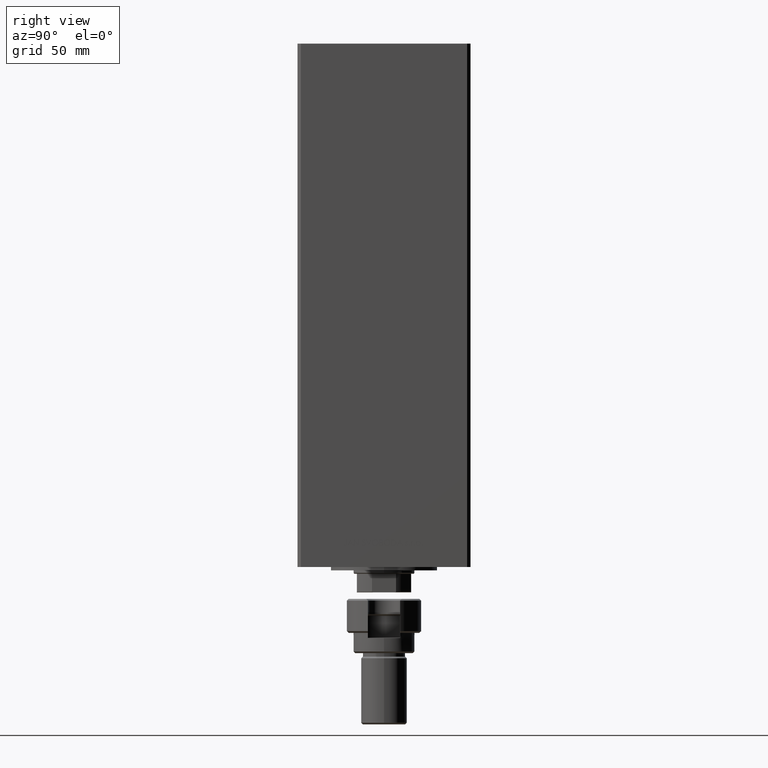
[diagram: clean part render]
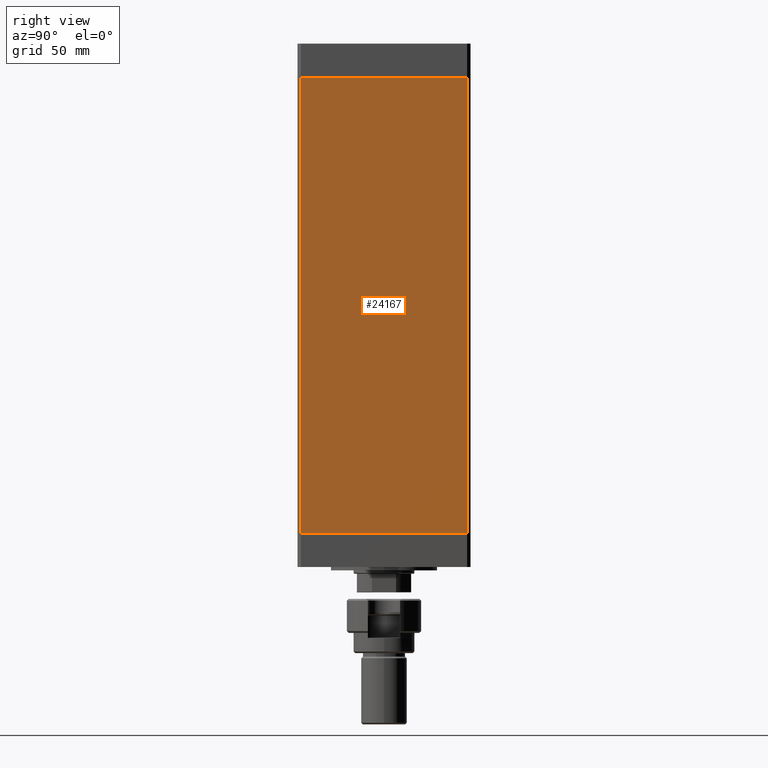
[diagram: same view with one face highlighted and labeled with its STEP entity id]
A machine part, right view. The second image highlights one B-rep face of the part: STEP entity #24167.
In plain terms, the highlighted planar face has unit normal (1, -0, 0).
Its self-contained STEP definition (entity closure, byte-faithful):
#844 = VERTEX_POINT ( 'NONE', #7793 ) ;
#4402 = EDGE_CURVE ( 'NONE', #25145, #20898, #7864, .T. ) ;
#5419 = EDGE_CURVE ( 'NONE', #844, #44251, #10490, .T. ) ;
#5439 = CARTESIAN_POINT ( 'NONE',  ( 60.00000000000001421, 49.00000000000000000, 268.5000000000000000 ) ) ;
#7748 = ORIENTED_EDGE ( 'NONE', *, *, #5419, .T. ) ;
#7793 = CARTESIAN_POINT ( 'NONE',  ( 59.99999999999998579, -49.00000000000000000, 268.5000000000000000 ) ) ;
#7864 = LINE ( 'NONE', #19289, #10674 ) ;
#10490 = LINE ( 'NONE', #46100, #19006 ) ;
#10674 = VECTOR ( 'NONE', #11161, 1000.000000000000000 ) ;
#10698 = VECTOR ( 'NONE', #14556, 1000.000000000000000 ) ;
#11161 = DIRECTION ( 'NONE',  ( -0.000000000000000000, -0.000000000000000000, -1.000000000000000000 ) ) ;
#14556 = DIRECTION ( 'NONE',  ( -2.832201593431521726E-16, -1.000000000000000000, 0.000000000000000000 ) ) ;
#18136 = AXIS2_PLACEMENT_3D ( 'NONE', #45392, #49472, #26064 ) ;
#18185 = PLANE ( 'NONE',  #18136 ) ;
#18916 = EDGE_CURVE ( 'NONE', #20898, #44251, #24273, .T. ) ;
#19006 = VECTOR ( 'NONE', #30072, 1000.000000000000000 ) ;
#19289 = CARTESIAN_POINT ( 'NONE',  ( 60.00000000000001421, 49.00000000000000000, 268.5000000000000000 ) ) ;
#20719 = DIRECTION ( 'NONE',  ( -2.832201593431521726E-16, -1.000000000000000000, 0.000000000000000000 ) ) ;
#20898 = VERTEX_POINT ( 'NONE', #42703 ) ;
#21538 = ORIENTED_EDGE ( 'NONE', *, *, #4402, .F. ) ;
#24167 = ADVANCED_FACE ( 'NONE', ( #48979 ), #18185, .T. ) ;
#24273 = LINE ( 'NONE', #24536, #43157 ) ;
#24536 = CARTESIAN_POINT ( 'NONE',  ( 60.00000000000001421, 49.00000000000000000, 0.000000000000000000 ) ) ;
#25145 = VERTEX_POINT ( 'NONE', #5439 ) ;
#26064 = DIRECTION ( 'NONE',  ( 2.832201593431521726E-16, 1.000000000000000000, 0.000000000000000000 ) ) ;
#26773 = CARTESIAN_POINT ( 'NONE',  ( 60.00000000000001421, 49.00000000000000000, 268.5000000000000000 ) ) ;
#30072 = DIRECTION ( 'NONE',  ( -0.000000000000000000, -0.000000000000000000, -1.000000000000000000 ) ) ;
#34414 = ORIENTED_EDGE ( 'NONE', *, *, #45023, .T. ) ;
#38598 = EDGE_LOOP ( 'NONE', ( #42381, #21538, #34414, #7748 ) ) ;
#41271 = LINE ( 'NONE', #26773, #10698 ) ;
#42381 = ORIENTED_EDGE ( 'NONE', *, *, #18916, .F. ) ;
#42703 = CARTESIAN_POINT ( 'NONE',  ( 60.00000000000001421, 49.00000000000000000, 0.000000000000000000 ) ) ;
#43157 = VECTOR ( 'NONE', #20719, 1000.000000000000000 ) ;
#44251 = VERTEX_POINT ( 'NONE', #46097 ) ;
#45023 = EDGE_CURVE ( 'NONE', #25145, #844, #41271, .T. ) ;
#45392 = CARTESIAN_POINT ( 'NONE',  ( 60.00000000000001421, 49.00000000000000000, 268.5000000000000000 ) ) ;
#46097 = CARTESIAN_POINT ( 'NONE',  ( 59.99999999999998579, -49.00000000000000000, 0.000000000000000000 ) ) ;
#46100 = CARTESIAN_POINT ( 'NONE',  ( 59.99999999999998579, -49.00000000000000000, 268.5000000000000000 ) ) ;
#48979 = FACE_OUTER_BOUND ( 'NONE', #38598, .T. ) ;
#49472 = DIRECTION ( 'NONE',  ( 1.000000000000000000, -2.832201593431521726E-16, 0.000000000000000000 ) ) ;